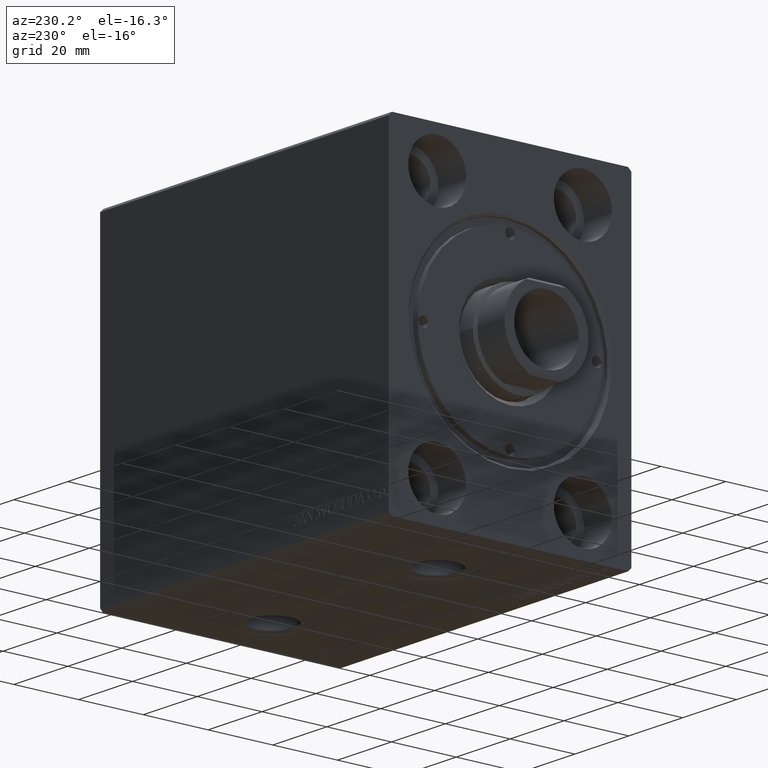
[diagram: clean part render]
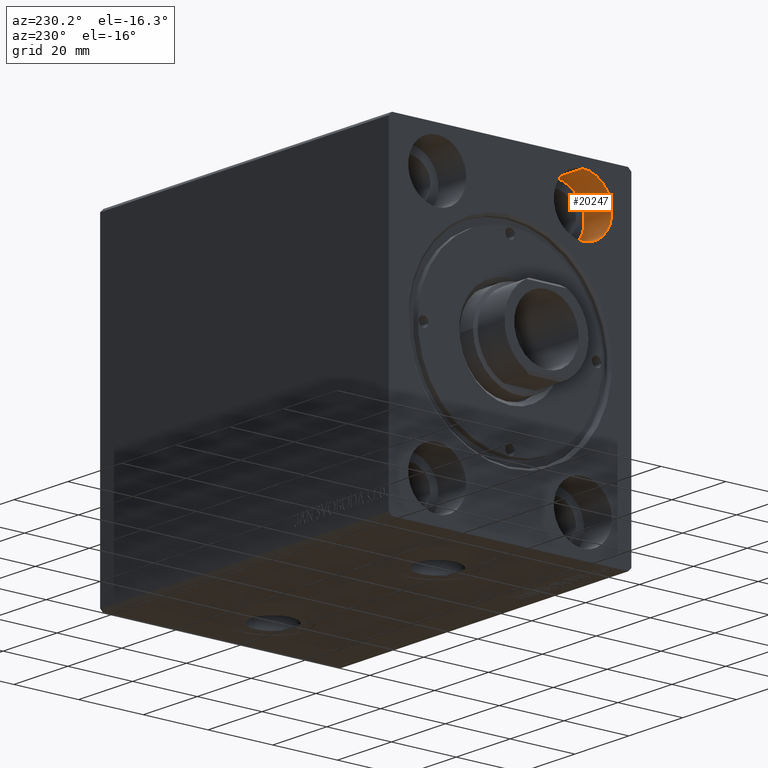
[diagram: same view with one face highlighted and labeled with its STEP entity id]
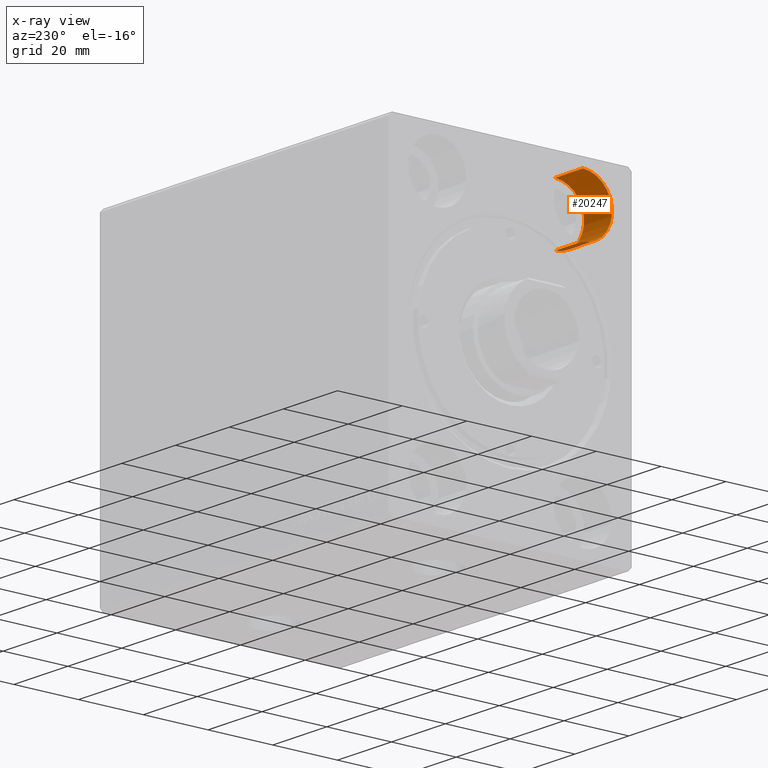
[diagram: x-ray of the same camera — body ghosted, the highlighted face saturated]
A machine part, auxiliary view. The second image highlights one B-rep face of the part: STEP entity #20247.
The next image is the same camera in x-ray: the body ghosted, the highlighted face saturated — about 0% of this face is hidden behind the body in this view.
In plain terms, the highlighted cylindrical surface (partial cylindrical patch) has radius 9 mm, axis along (-1, -0, -0).
Its self-contained STEP definition (entity closure, byte-faithful):
#226 = CARTESIAN_POINT ( 'NONE',  ( 10.33000000000000007, -22.50000000000000000, 47.00000000000000000 ) ) ;
#336 = FACE_OUTER_BOUND ( 'NONE', #21726, .T. ) ;
#347 = CARTESIAN_POINT ( 'NONE',  ( 10.33000000000000007, -22.50000000000000000, 38.00000000000000000 ) ) ;
#684 = LINE ( 'NONE', #14397, #29471 ) ;
#3179 = AXIS2_PLACEMENT_3D ( 'NONE', #37921, #17641, #14050 ) ;
#5738 = EDGE_CURVE ( 'NONE', #30686, #13976, #684, .T. ) ;
#6042 = CIRCLE ( 'NONE', #43435, 9.000000000000001776 ) ;
#8970 = CARTESIAN_POINT ( 'NONE',  ( 10.33000000000000007, -22.50000000000000000, 28.99999999999999645 ) ) ;
#9797 = EDGE_CURVE ( 'NONE', #17079, #41789, #38262, .T. ) ;
#13007 = DIRECTION ( 'NONE',  ( -1.000000000000000000, -0.000000000000000000, -0.000000000000000000 ) ) ;
#13976 = VERTEX_POINT ( 'NONE', #39891 ) ;
#14050 = DIRECTION ( 'NONE',  ( 0.000000000000000000, 0.000000000000000000, 1.000000000000000000 ) ) ;
#14060 = DIRECTION ( 'NONE',  ( -1.000000000000000000, 0.000000000000000000, 0.000000000000000000 ) ) ;
#14397 = CARTESIAN_POINT ( 'NONE',  ( 10.33000000000000007, -22.50000000000000000, 28.99999999999999645 ) ) ;
#15493 = CIRCLE ( 'NONE', #40661, 9.000000000000001776 ) ;
#16176 = ORIENTED_EDGE ( 'NONE', *, *, #5738, .T. ) ;
#16240 = EDGE_CURVE ( 'NONE', #13976, #41789, #6042, .T. ) ;
#17079 = VERTEX_POINT ( 'NONE', #41358 ) ;
#17641 = DIRECTION ( 'NONE',  ( -1.000000000000000000, -0.000000000000000000, -0.000000000000000000 ) ) ;
#20247 = ADVANCED_FACE ( 'NONE', ( #336 ), #42183, .F. ) ;
#21726 = EDGE_LOOP ( 'NONE', ( #42537, #16176, #39394, #26314 ) ) ;
#22388 = VECTOR ( 'NONE', #31065, 1000.000000000000000 ) ;
#24009 = DIRECTION ( 'NONE',  ( -1.000000000000000000, 0.000000000000000000, 0.000000000000000000 ) ) ;
#26314 = ORIENTED_EDGE ( 'NONE', *, *, #9797, .F. ) ;
#27841 = CARTESIAN_POINT ( 'NONE',  ( 0.000000000000000000, -22.50000000000000000, 38.00000000000000000 ) ) ;
#29471 = VECTOR ( 'NONE', #13007, 1000.000000000000000 ) ;
#30686 = VERTEX_POINT ( 'NONE', #8970 ) ;
#31065 = DIRECTION ( 'NONE',  ( -1.000000000000000000, -0.000000000000000000, -0.000000000000000000 ) ) ;
#37921 = CARTESIAN_POINT ( 'NONE',  ( 10.33000000000000007, -22.50000000000000000, 38.00000000000000000 ) ) ;
#37927 = CARTESIAN_POINT ( 'NONE',  ( 0.000000000000000000, -22.50000000000000000, 47.00000000000000000 ) ) ;
#38151 = DIRECTION ( 'NONE',  ( 0.000000000000000000, 0.000000000000000000, 1.000000000000000000 ) ) ;
#38262 = LINE ( 'NONE', #226, #22388 ) ;
#39394 = ORIENTED_EDGE ( 'NONE', *, *, #16240, .T. ) ;
#39891 = CARTESIAN_POINT ( 'NONE',  ( 0.000000000000000000, -22.50000000000000000, 28.99999999999999645 ) ) ;
#40661 = AXIS2_PLACEMENT_3D ( 'NONE', #347, #14060, #38151 ) ;
#41358 = CARTESIAN_POINT ( 'NONE',  ( 10.33000000000000007, -22.50000000000000000, 47.00000000000000000 ) ) ;
#41789 = VERTEX_POINT ( 'NONE', #37927 ) ;
#42183 = CYLINDRICAL_SURFACE ( 'NONE', #3179, 9.000000000000001776 ) ;
#42537 = ORIENTED_EDGE ( 'NONE', *, *, #43972, .F. ) ;
#43435 = AXIS2_PLACEMENT_3D ( 'NONE', #27841, #24009, #44508 ) ;
#43972 = EDGE_CURVE ( 'NONE', #30686, #17079, #15493, .T. ) ;
#44508 = DIRECTION ( 'NONE',  ( 0.000000000000000000, 0.000000000000000000, 1.000000000000000000 ) ) ;